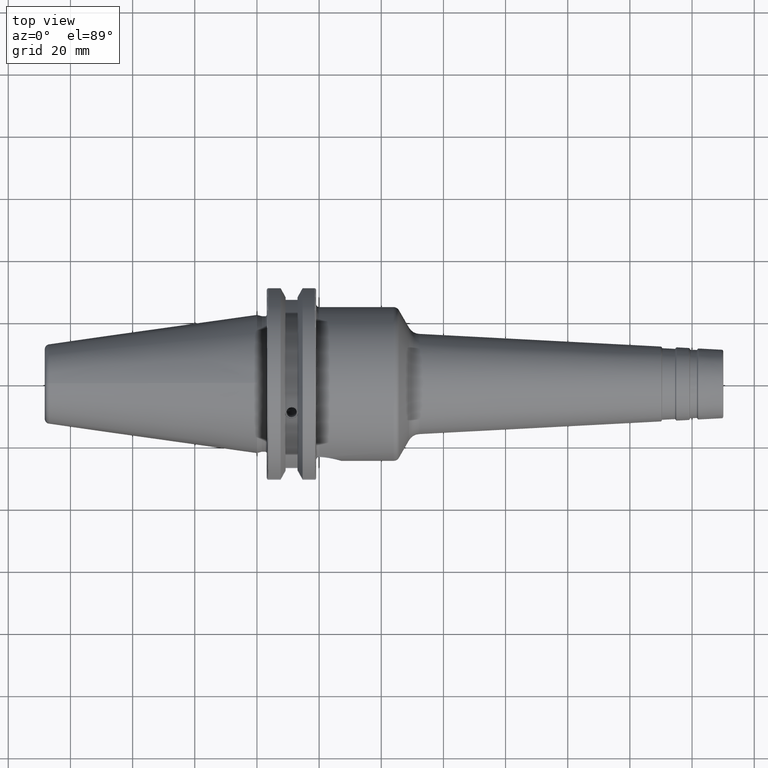
[diagram: clean part render]
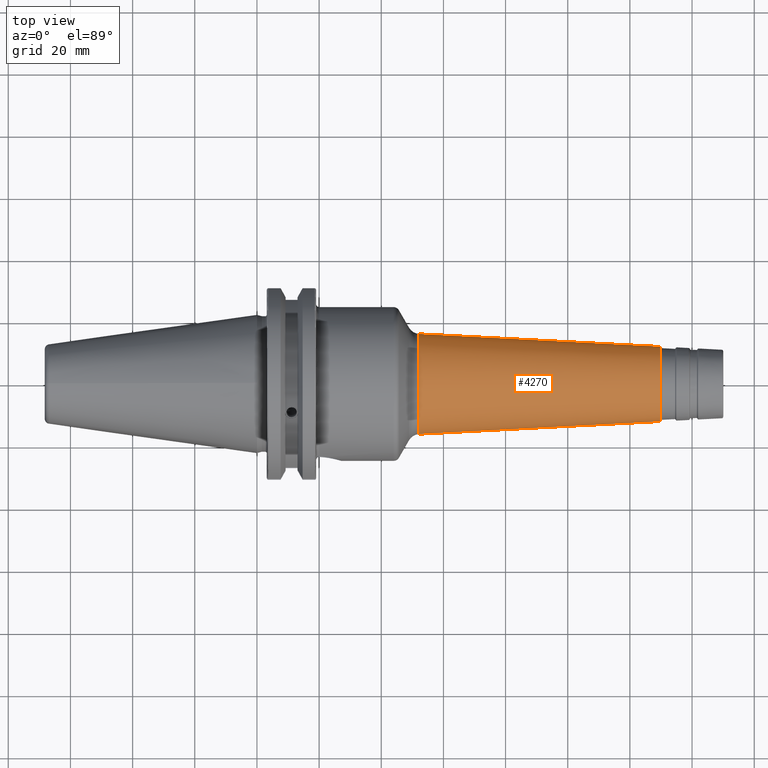
[diagram: same view with one face highlighted and labeled with its STEP entity id]
A machine part, top view. The second image highlights one B-rep face of the part: STEP entity #4270.
In plain terms, the highlighted conical surface has half-angle 3 deg.
Its self-contained STEP definition (entity closure, byte-faithful):
#1527=DIRECTION('',(-9.986295347546E-1,5.233595624294E-2,8.293330409811E-12));
#1528=VECTOR('',#1527,3.063707434982E0);
#1529=CARTESIAN_POINT('',(5.113635951262E0,4.745260401781E-1,
-2.596442158526E-11));
#1530=LINE('',#1529,#1528);
#1536=DIRECTION('',(-9.986295347546E-1,-5.233595624294E-2,-8.293351809118E-12));
#1537=VECTOR('',#1536,3.063707434982E0);
#1538=CARTESIAN_POINT('',(5.113635951262E0,-4.745260401781E-1,
2.596439979271E-11));
#1539=LINE('',#1538,#1537);
#1586=CARTESIAN_POINT('',(5.113635951261E0,0.E0,0.E0));
#1587=DIRECTION('',(-1.E0,0.E0,0.E0));
#1588=DIRECTION('',(0.E0,-1.E0,0.E0));
#1589=AXIS2_PLACEMENT_3D('',#1586,#1587,#1588);
#1591=CARTESIAN_POINT('',(2.054127220842E0,0.E0,0.E0));
#1592=DIRECTION('',(1.E0,0.E0,0.E0));
#1593=DIRECTION('',(0.E0,1.E0,0.E0));
#1594=AXIS2_PLACEMENT_3D('',#1591,#1592,#1593);
#2589=CARTESIAN_POINT('',(2.054127220842E0,-6.348680984364E-1,0.E0));
#2590=CARTESIAN_POINT('',(2.054127220842E0,6.348680984364E-1,0.E0));
#2591=VERTEX_POINT('',#2589);
#2592=VERTEX_POINT('',#2590);
#2593=CARTESIAN_POINT('',(5.113635951261E0,4.745260401781E-1,0.E0));
#2594=CARTESIAN_POINT('',(5.113635951261E0,-4.745260401781E-1,0.E0));
#2595=VERTEX_POINT('',#2593);
#2596=VERTEX_POINT('',#2594);
#4258=CARTESIAN_POINT('',(3.970586969984E0,0.E0,0.E0));
#4259=DIRECTION('',(-1.E0,0.E0,0.E0));
#4260=DIRECTION('',(0.E0,1.E0,0.E0));
#4261=AXIS2_PLACEMENT_3D('',#4258,#4259,#4260);
#4262=CONICAL_SURFACE('',#4261,5.344306988986E-1,3.E0);
#4263=ORIENTED_EDGE('',*,*,#4249,.F.);
#4264=ORIENTED_EDGE('',*,*,#4193,.T.);
#4266=ORIENTED_EDGE('',*,*,#4265,.F.);
#4267=ORIENTED_EDGE('',*,*,#4189,.F.);
#4268=EDGE_LOOP('',(#4263,#4264,#4266,#4267));
#4269=FACE_OUTER_BOUND('',#4268,.F.);
#4270=ADVANCED_FACE('',(#4269),#4262,.T.);
#1590=CIRCLE('',#1589,4.745260401781E-1);
#1595=CIRCLE('',#1594,6.348680984364E-1);
#4189=EDGE_CURVE('',#2595,#2592,#1530,.T.);
#4193=EDGE_CURVE('',#2596,#2591,#1539,.T.);
#4249=EDGE_CURVE('',#2596,#2595,#1590,.T.);
#4265=EDGE_CURVE('',#2592,#2591,#1595,.T.);